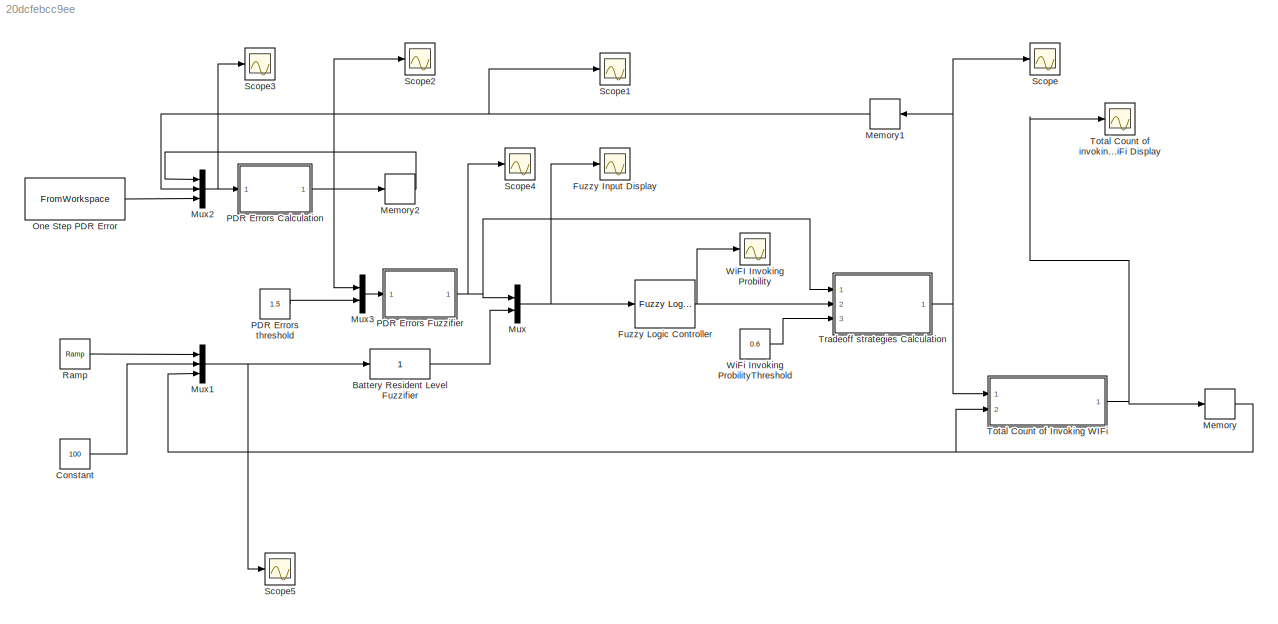
MODEL slx_20dcfebcc9ee
KIND model
CONFIG AbsTol = auto
CONFIG EnableMultiTasking = off
CONFIG FixedStep = 1
CONFIG MaxStep = auto
CONFIG MinStep = auto
CONFIG RelTol = 1e-3
CONFIG SampleTimeConstraint = Unconstrained
CONFIG Solver = FixedStepDiscrete
CONFIG SolverName = FixedStepDiscrete
CONFIG StartTime = 0.0
CONFIG StopTime = 260
BLOCK [Fcn] Battery Resident Level Fuzzifier
  Expr = 1
BLOCK [Constant] Constant
  Value = 100
BLOCK [Scope] Fuzzy Input Display
  NumInputPorts = 1
  Ports = [1]
  ScopeSpecificationString = Simulink.scopes.TimeScopeBlockCfg('CurrentConfiguration', extmgr.ConfigurationSet(extmgr.Configuration('Core','General UI',true),extmgr.Configuration('Core','Source UI',true),extmgr.Configuration('Sources','WiredSimulink',true,'DataLoggingVariableName','FuzzyInput','DataLogging',true,'DataLoggingSaveFormat','Array'),extmgr.Configuration('Visuals','Time Domain',true,'SerializedDisplays',{struct('Mi...<+1537ch>
BLOCK [Reference] Fuzzy Logic Controller  REF=fuzblock/Fuzzy Logic   (lib defined in mdl_858b3b3e7478)
Controller
  Ports = [1, 1]
  SourceBlock = fuzblock/Fuzzy Logic \nController
  SourceType = FIS
BLOCK [Memory] Memory
BLOCK [Memory] Memory1
BLOCK [Memory] Memory2
BLOCK [Mux] Mux
  DisplayOption = bar
  Inputs = 2
  Ports = [2, 1]
BLOCK [Mux] Mux1
  DisplayOption = bar
  Inputs = 3
  Ports = [3, 1]
BLOCK [Mux] Mux2
  DisplayOption = bar
  Inputs = [1 1 1]
  Ports = [3, 1]
BLOCK [Mux] Mux3
  DisplayOption = bar
  Inputs = 2
  Ports = [2, 1]
BLOCK [FromWorkspace] One Step PDR Error
  SampleTime = 0
  VariableName = oneStepPDRErrors
  ZeroCross = on
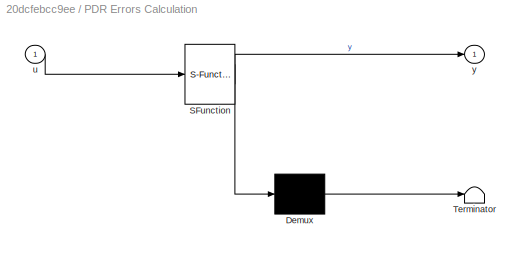
BLOCK [SubSystem] PDR Errors Calculation
  ErrorFcn = Stateflow.Translate.translate
  PermitHierarchicalResolution = ExplicitOnly
  Ports = [1, 1]
  RequestExecContextInheritance = off
  SFBlockType = MATLAB Function
  TreatAsAtomicUnit = on
  Variant = off
BLOCK [Demux] PDR Errors Calculation/ Demux 
  Outputs = 1
  Ports = [1, 1]
BLOCK [S-Function] PDR Errors Calculation/ SFunction 
  EnableBusSupport = on
  FunctionName = sf_sfun
  PortCounts = [1 2]
  Ports = [1, 2]
  SFcnIsStateOwnerBlock = off
  SFunctionDeploymentMode = off
  Tag = Stateflow S-Function WiFiPDRFuzzyLogic20201103 1
BLOCK [Terminator] PDR Errors Calculation/ Terminator 
BLOCK [Inport] PDR Errors Calculation/u
  IconDisplay = Port number
BLOCK [Outport] PDR Errors Calculation/y
  IconDisplay = Port number
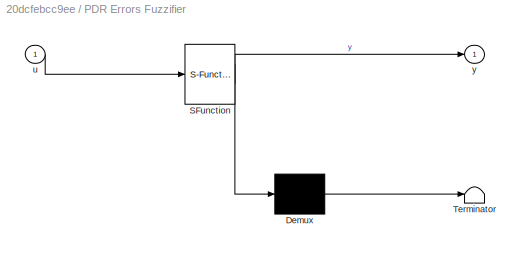
BLOCK [SubSystem] PDR Errors Fuzzifier
  ErrorFcn = Stateflow.Translate.translate
  PermitHierarchicalResolution = ExplicitOnly
  Ports = [1, 1]
  RequestExecContextInheritance = off
  SFBlockType = MATLAB Function
  TreatAsAtomicUnit = on
  Variant = off
BLOCK [Demux] PDR Errors Fuzzifier/ Demux 
  Outputs = 1
  Ports = [1, 1]
BLOCK [S-Function] PDR Errors Fuzzifier/ SFunction 
  EnableBusSupport = on
  FunctionName = sf_sfun
  PortCounts = [1 2]
  Ports = [1, 2]
  SFcnIsStateOwnerBlock = off
  SFunctionDeploymentMode = off
  Tag = Stateflow S-Function WiFiPDRFuzzyLogic20201103 4
BLOCK [Terminator] PDR Errors Fuzzifier/ Terminator 
BLOCK [Inport] PDR Errors Fuzzifier/u
  IconDisplay = Port number
BLOCK [Outport] PDR Errors Fuzzifier/y
  IconDisplay = Port number
BLOCK [Constant] PDR Errors threshold 
  Value = 1.5
BLOCK [Reference] Ramp  REF=simulink/Sources/Ramp
  Ports = [0, 1]
  SourceBlock = simulink/Sources/Ramp
  SourceType = Ramp
BLOCK [Scope] Scope
  NumInputPorts = 1
  Ports = [1]
  ScopeSpecificationString = Simulink.scopes.TimeScopeBlockCfg('CurrentConfiguration', extmgr.ConfigurationSet(extmgr.Configuration('Core','General UI',true),extmgr.Configuration('Core','Source UI',true),extmgr.Configuration('Sources','WiredSimulink',true,'DataLoggingVariableName','WiFiInvoke','DataLogging',true,'DataLoggingSaveFormat','Array'),extmgr.Configuration('Visuals','Time Domain',true,'SerializedDisplays',{struct('Mi...<+1499ch>
BLOCK [Scope] Scope1
  NumInputPorts = 1
  Ports = [1]
  ScopeSpecificationString = Simulink.scopes.TimeScopeBlockCfg('CurrentConfiguration', extmgr.ConfigurationSet(extmgr.Configuration('Core','General UI',true),extmgr.Configuration('Core','Source UI',true),extmgr.Configuration('Sources','WiredSimulink',true,'DataLoggingVariableName','ResetSignal','DataLogging',true,'DataLoggingSaveFormat','Array'),extmgr.Configuration('Visuals','Time Domain',true,'SerializedDisplays',{struct('M...<+1477ch>
BLOCK [Scope] Scope2
  NumInputPorts = 1
  Ports = [1]
  ScopeSpecificationString = Simulink.scopes.TimeScopeBlockCfg('CurrentConfiguration', extmgr.ConfigurationSet(extmgr.Configuration('Core','General UI',true),extmgr.Configuration('Core','Source UI',true),extmgr.Configuration('Sources','WiredSimulink',true,'DataLoggingVariableName','ScopeData1'),extmgr.Configuration('Visuals','Time Domain',true,'TimeAxisLabels','All','SerializedDisplays',{struct('MinYLimReal','-0.06483','MaxYL...<+1503ch>
BLOCK [Scope] Scope3
  NumInputPorts = 1
  Ports = [1]
  ScopeSpecificationString = Simulink.scopes.TimeScopeBlockCfg('CurrentConfiguration', extmgr.ConfigurationSet(extmgr.Configuration('Core','General UI',true),extmgr.Configuration('Core','Source UI',true),extmgr.Configuration('Sources','WiredSimulink',true,'DataLoggingVariableName','ScopeData1','DataLogging',true,'DataLoggingSaveFormat','Array'),extmgr.Configuration('Visuals','Time Domain',true,'SerializedDisplays',{struct('Mi...<+1565ch>
BLOCK [Scope] Scope4
  NumInputPorts = 1
  Ports = [1]
  ScopeSpecificationString = Simulink.scopes.TimeScopeBlockCfg('CurrentConfiguration', extmgr.ConfigurationSet(extmgr.Configuration('Core','General UI',true),extmgr.Configuration('Core','Source UI',true),extmgr.Configuration('Sources','WiredSimulink',true,'DataLoggingVariableName','ScopeData1'),extmgr.Configuration('Visuals','Time Domain',true,'SerializedDisplays',{struct('MinYLimReal','0.5438','MaxYLimReal','1.12679','YLabel...<+1420ch>
BLOCK [Scope] Scope5
  NumInputPorts = 1
  Ports = [1]
  ScopeSpecificationString = Simulink.scopes.TimeScopeBlockCfg('CurrentConfiguration', extmgr.ConfigurationSet(extmgr.Configuration('Core','General UI',true),extmgr.Configuration('Core','Source UI',true),extmgr.Configuration('Sources','WiredSimulink',true,'DataLoggingVariableName','ScopeData1','DataLoggingSaveFormat','Array'),extmgr.Configuration('Visuals','Time Domain',true,'SerializedDisplays',{struct('MinYLimReal','-32.5',...<+1473ch>
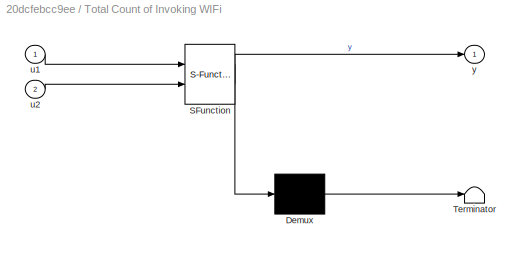
BLOCK [SubSystem] Total Count of Invoking WIFi
  ErrorFcn = Stateflow.Translate.translate
  PermitHierarchicalResolution = ExplicitOnly
  Ports = [2, 1]
  RequestExecContextInheritance = off
  SFBlockType = MATLAB Function
  TreatAsAtomicUnit = on
  Variant = off
BLOCK [Demux] Total Count of Invoking WIFi/ Demux 
  Outputs = 1
  Ports = [1, 1]
BLOCK [S-Function] Total Count of Invoking WIFi/ SFunction 
  EnableBusSupport = on
  FunctionName = sf_sfun
  PortCounts = [2 2]
  Ports = [2, 2]
  SFcnIsStateOwnerBlock = off
  SFunctionDeploymentMode = off
  Tag = Stateflow S-Function WiFiPDRFuzzyLogic20201103 3
BLOCK [Terminator] Total Count of Invoking WIFi/ Terminator 
BLOCK [Inport] Total Count of Invoking WIFi/u1
  IconDisplay = Port number
BLOCK [Inport] Total Count of Invoking WIFi/u2
  IconDisplay = Port number
  Port = 2
BLOCK [Outport] Total Count of Invoking WIFi/y
  IconDisplay = Port number
BLOCK [Scope] Total Count of invoking WiFi Display
  NumInputPorts = 1
  Ports = [1]
  ScopeSpecificationString = Simulink.scopes.TimeScopeBlockCfg('CurrentConfiguration', extmgr.ConfigurationSet(extmgr.Configuration('Core','General UI',true),extmgr.Configuration('Core','Source UI',true),extmgr.Configuration('Sources','WiredSimulink',true,'DataLoggingVariableName','SumWiFiCount','DataLogging',true,'DataLoggingSaveFormat','Array'),extmgr.Configuration('Visuals','Time Domain',true,'SerializedDisplays',{struct('...<+1472ch>
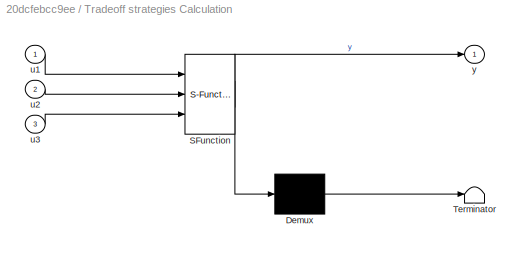
BLOCK [SubSystem] Tradeoff strategies Calculation
  ErrorFcn = Stateflow.Translate.translate
  PermitHierarchicalResolution = ExplicitOnly
  Ports = [3, 1]
  RequestExecContextInheritance = off
  SFBlockType = MATLAB Function
  TreatAsAtomicUnit = on
  Variant = off
BLOCK [Demux] Tradeoff strategies Calculation/ Demux 
  Outputs = 1
  Ports = [1, 1]
BLOCK [S-Function] Tradeoff strategies Calculation/ SFunction 
  EnableBusSupport = on
  FunctionName = sf_sfun
  PortCounts = [3 2]
  Ports = [3, 2]
  SFcnIsStateOwnerBlock = off
  SFunctionDeploymentMode = off
  Tag = Stateflow S-Function WiFiPDRFuzzyLogic20201103 2
BLOCK [Terminator] Tradeoff strategies Calculation/ Terminator 
BLOCK [Inport] Tradeoff strategies Calculation/u1
  IconDisplay = Port number
BLOCK [Inport] Tradeoff strategies Calculation/u2
  IconDisplay = Port number
  Port = 2
BLOCK [Inport] Tradeoff strategies Calculation/u3
  IconDisplay = Port number
  Port = 3
BLOCK [Outport] Tradeoff strategies Calculation/y
  IconDisplay = Port number
BLOCK [Scope] WiFI Invoking Probility
  NumInputPorts = 1
  Ports = [1]
  ScopeSpecificationString = Simulink.scopes.TimeScopeBlockCfg('CurrentConfiguration', extmgr.ConfigurationSet(extmgr.Configuration('Core','General UI',true),extmgr.Configuration('Core','Source UI',true),extmgr.Configuration('Sources','WiredSimulink',true,'DataLoggingLimitDataPoints',true,'DataLoggingSaveFormat','Array','DataLoggingDecimation','1','DataLoggingDecimateData',true,'DataLogging',true,'DataLoggingVariableName','wi...<+1645ch>
BLOCK [Constant] WiFi Invoking ProbilityThreshold 
  Value = 0.6
LINE Battery Resident Level Fuzzifier:1 -> Mux:2
LINE Constant:1 -> Mux1:2
NET Fuzzy Logic Controller:1 -> Tradeoff strategies Calculation:2, WiFI Invoking Probility:1
NET Memory1:1 -> Mux2:2, Scope1:1
LINE Memory2:1 -> Mux2:1
NET Memory:1 -> Mux1:3, Total Count of Invoking WIFi:2
NET Mux1:1 -> Battery Resident Level Fuzzifier:1, Scope5:1
NET Mux2:1 -> PDR Errors Calculation:1, Scope3:1
LINE Mux3:1 -> PDR Errors Fuzzifier:1
NET Mux:1 -> Fuzzy Input Display:1, Fuzzy Logic Controller:1
LINE One Step PDR Error:1 -> Mux2:3
NET PDR Errors Calculation:1 -> Memory2:1, Mux3:1, Scope2:1
NET PDR Errors Fuzzifier:1 -> Mux:1, Scope4:1, Tradeoff strategies Calculation:1
LINE PDR Errors threshold :1 -> Mux3:2
LINE Ramp:1 -> Mux1:1
NET Total Count of Invoking WIFi:1 -> Memory:1, Total Count of invoking WiFi Display:1
NET Tradeoff strategies Calculation:1 -> Memory1:1, Scope:1, Total Count of Invoking WIFi:1
LINE WiFi Invoking ProbilityThreshold :1 -> Tradeoff strategies Calculation:3
note: NET lines group one-source signal fan-out (src -> all destinations, sorted); 1:1 wires keep LINE
CHART PDR Errors Calculation states=1 transitions=1
  STATE_LABEL 'eML_blk_kernel()'
  STATE_LABEL 'SCRIPT:\n\nfunction y = fcn(u)\n\n        resetSignal=u(2);\n        oneStepError=u(3);\n       \n        if resetSignal ==1 \n            lastSumPDRErrors = 0;\n        else \n            lastSumPDRErrors = u(1);\n        end \n        errors = lastSumPDRErrors + oneStepError\n        y=errors\n        \n  end \n\n\n'
CHART Tradeoff strategies Calculation states=1 transitions=1
  STATE_LABEL 'eML_blk_kernel()'
  STATE_LABEL 'SCRIPT:\nfunction y = fcn(u1,u2,u3)\n     wifiProbThrod = u3\n     wifiProb = u2\n     \n    if (wifiProb >=wifiProbThrod || u1==1  )\n        y = 1;\n    else\n        y=0;\n    end\nend\n'
CHART Total Count of Invoking WIFi states=1 transitions=1
  STATE_LABEL 'eML_blk_kernel()'
  STATE_LABEL 'SCRIPT:\nfunction y = fcn(u1,u2)\ny = u1+u2;\n'
CHART PDR Errors Fuzzifier states=1 transitions=1
  STATE_LABEL 'eML_blk_kernel()'
  STATE_LABEL 'SCRIPT:\nfunction y = fcn(u)\n    maxPDRErrors = u(2)\n    if u(1) < maxPDRErrors\n        y= u(1)/maxPDRErrors;\n    else u(1) >= maxPDRErrors\n        y =1;\n    end\nend\n'
